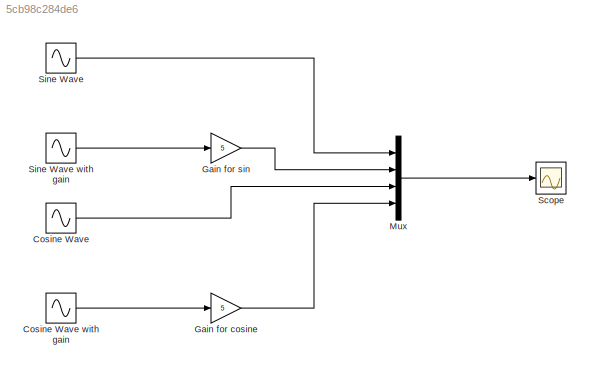
MODEL slx_5cb98c284de6
KIND model
CONFIG AbsTol = auto
CONFIG FixedStep = auto
CONFIG MaxStep = auto
CONFIG MinStep = auto
CONFIG RelTol = 1e-3
CONFIG SampleTimeConstraint = Unconstrained
CONFIG Solver = ode45
CONFIG SolverMode = Auto
CONFIG SolverName = ode45
CONFIG StartTime = 0.0
CONFIG StopTime = 10.0
BLOCK [Sin] Cosine Wave
  Phase = pi/2
  Ports = [0, 1]
  SampleTime = 0
BLOCK [Sin] Cosine Wave with gain
  Phase = pi/2
  Ports = [0, 1]
  SampleTime = 0
BLOCK [Gain] Gain for cosine
  Gain = 5
  OutDataTypeStr = Inherit: Inherit via internal rule
  ParamDataTypeStr = Inherit: Inherit via internal rule
  SaturateOnIntegerOverflow = off
BLOCK [Gain] Gain for sin
  Gain = 5
  OutDataTypeStr = Inherit: Inherit via internal rule
  ParamDataTypeStr = Inherit: Inherit via internal rule
  SaturateOnIntegerOverflow = off
BLOCK [Mux] Mux
  DisplayOption = bar
  Ports = [4, 1]
BLOCK [Scope] Scope
  Floating = off
  NumInputPorts = 1
  Ports = [1]
  ShowLegends = on
BLOCK [Sin] Sine Wave
  Ports = [0, 1]
  SampleTime = 0
BLOCK [Sin] Sine Wave with gain
  Ports = [0, 1]
  SampleTime = 0
LINE Cosine Wave with gain:1 -> Gain for cosine:1
LINE Cosine Wave:1 -> Mux:3
LINE Gain for cosine:1 -> Mux:4
LINE Gain for sin:1 -> Mux:2
LINE Mux:1 -> Scope:1
LINE Sine Wave with gain:1 -> Gain for sin:1
LINE Sine Wave:1 -> Mux:1
